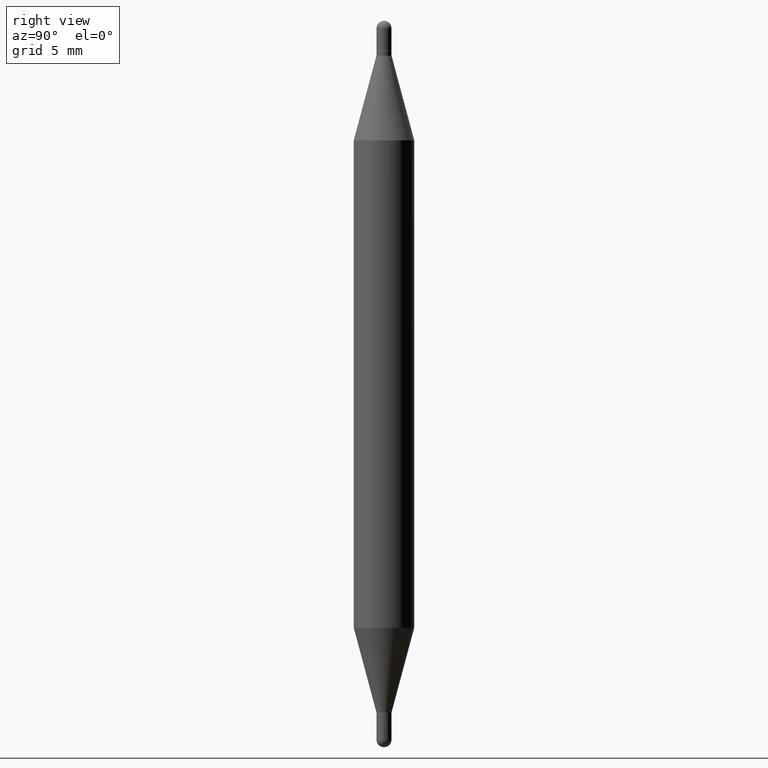
[diagram: clean part render]
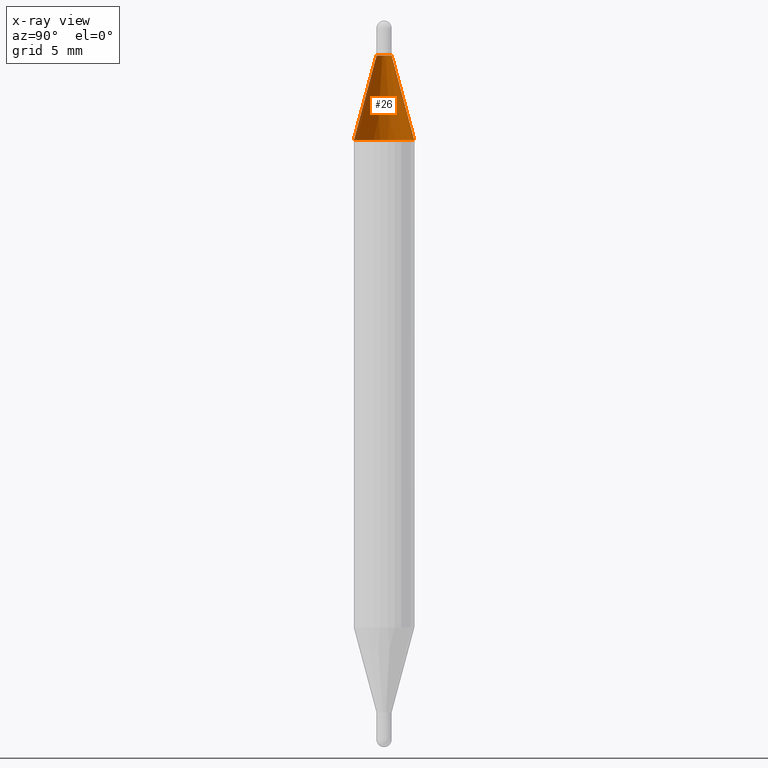
[diagram: x-ray — body ghosted, one internal face saturated and labeled with its STEP entity id]
A machine part, right view, then the same camera in x-ray: the body is ghosted and one INTERNAL B-rep face — a face not visible from any outside direction — is saturated and labeled: STEP entity #26.
In plain terms, the highlighted conical surface has half-angle 15 deg.
Its self-contained STEP definition (entity closure, byte-faithful):
#26 = ADVANCED_FACE ( 'NONE', ( #958 ), #1115, .T. ) ;
#57 = DIRECTION ( 'NONE',  ( -1.807323732225338422E-15, -0.2588190451025261241, -0.9659258262890667579 ) ) ;
#106 = VECTOR ( 'NONE', #57, 39.37007874015748854 ) ;
#108 = CARTESIAN_POINT ( 'NONE',  ( 1.070237687652701516E-16, 0.01559999999999956734, -0.07199999999999999456 ) ) ;
#154 = ORIENTED_EDGE ( 'NONE', *, *, #228, .T. ) ;
#170 = CARTESIAN_POINT ( 'NONE',  ( 3.496381040179191585E-29, -2.533438838923632443E-16, -0.07199999999999993905 ) ) ;
#188 = VERTEX_POINT ( 'NONE', #309 ) ;
#201 = EDGE_LOOP ( 'NONE', ( #238, #354, #154, #947 ) ) ;
#228 = EDGE_CURVE ( 'NONE', #830, #921, #860, .T. ) ;
#233 = DIRECTION ( 'NONE',  ( -6.982962677686265133E-15, -1.000000000000000000, 3.283471146231123028E-15 ) ) ;
#238 = ORIENTED_EDGE ( 'NONE', *, *, #295, .F. ) ;
#286 = CARTESIAN_POINT ( 'NONE',  ( 1.070237687652696216E-16, 0.01559999999999956734, -0.07199999999999999456 ) ) ;
#295 = EDGE_CURVE ( 'NONE', #514, #188, #573, .T. ) ;
#309 = CARTESIAN_POINT ( 'NONE',  ( -1.089342177718695287E-16, -0.01560000000000007561, -0.07199999999999989742 ) ) ;
#354 = ORIENTED_EDGE ( 'NONE', *, *, #881, .T. ) ;
#483 = AXIS2_PLACEMENT_3D ( 'NONE', #754, #1004, #936 ) ;
#514 = VERTEX_POINT ( 'NONE', #108 ) ;
#530 = DIRECTION ( 'NONE',  ( -6.982962677686265133E-15, -1.000000000000000000, 3.283471146231123028E-15 ) ) ;
#546 = DIRECTION ( 'NONE',  ( 1.775627540710973780E-15, 0.2588190451025194627, -0.9659258262890687563 ) ) ;
#573 = CIRCLE ( 'NONE', #575, 0.01559999999999982234 ) ;
#575 = AXIS2_PLACEMENT_3D ( 'NONE', #919, #854, #233 ) ;
#609 = DIRECTION ( 'NONE',  ( -2.448446106568060842E-29, -3.483878130583589894E-15, -1.000000000000000000 ) ) ;
#723 = LINE ( 'NONE', #800, #106 ) ;
#754 = CARTESIAN_POINT ( 'NONE',  ( 3.067821725048732845E-29, -8.631381618369439646E-16, -0.2470331828749794401 ) ) ;
#785 = AXIS2_PLACEMENT_3D ( 'NONE', #170, #609, #530 ) ;
#800 = CARTESIAN_POINT ( 'NONE',  ( -1.089342177718695287E-16, -0.01560000000000007561, -0.07199999999999989742 ) ) ;
#801 = VECTOR ( 'NONE', #546, 39.37007874015747433 ) ;
#802 = EDGE_CURVE ( 'NONE', #188, #921, #723, .T. ) ;
#830 = VERTEX_POINT ( 'NONE', #1070 ) ;
#854 = DIRECTION ( 'NONE',  ( 2.448446106568060842E-29, 3.483878130583589894E-15, 1.000000000000000000 ) ) ;
#860 = CIRCLE ( 'NONE', #483, 0.06249999999999999306 ) ;
#878 = LINE ( 'NONE', #286, #801 ) ;
#881 = EDGE_CURVE ( 'NONE', #514, #830, #878, .T. ) ;
#888 = CARTESIAN_POINT ( 'NONE',  ( -4.364351673553608545E-16, -0.06250000000000084655, -0.2470331828749792180 ) ) ;
#919 = CARTESIAN_POINT ( 'NONE',  ( 3.496381040179191585E-29, -2.533438838923632443E-16, -0.07199999999999993905 ) ) ;
#921 = VERTEX_POINT ( 'NONE', #888 ) ;
#936 = DIRECTION ( 'NONE',  ( -6.982962677686265922E-15, -1.000000000000000000, 3.278217592397116257E-15 ) ) ;
#947 = ORIENTED_EDGE ( 'NONE', *, *, #802, .F. ) ;
#958 = FACE_OUTER_BOUND ( 'NONE', #201, .T. ) ;
#1004 = DIRECTION ( 'NONE',  ( 2.448446106568060842E-29, 3.483878130583589894E-15, 1.000000000000000000 ) ) ;
#1070 = CARTESIAN_POINT ( 'NONE',  ( 4.287811248607512910E-16, 0.06249999999999911876, -0.2470331828749796621 ) ) ;
#1115 = CONICAL_SURFACE ( 'NONE', #785, 0.01559999999999982234, 0.2617993877991515173 ) ;